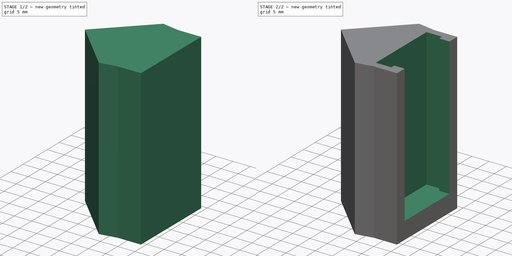
[diagram: build sequence overview — one tinted view per stage of 2, left to right]
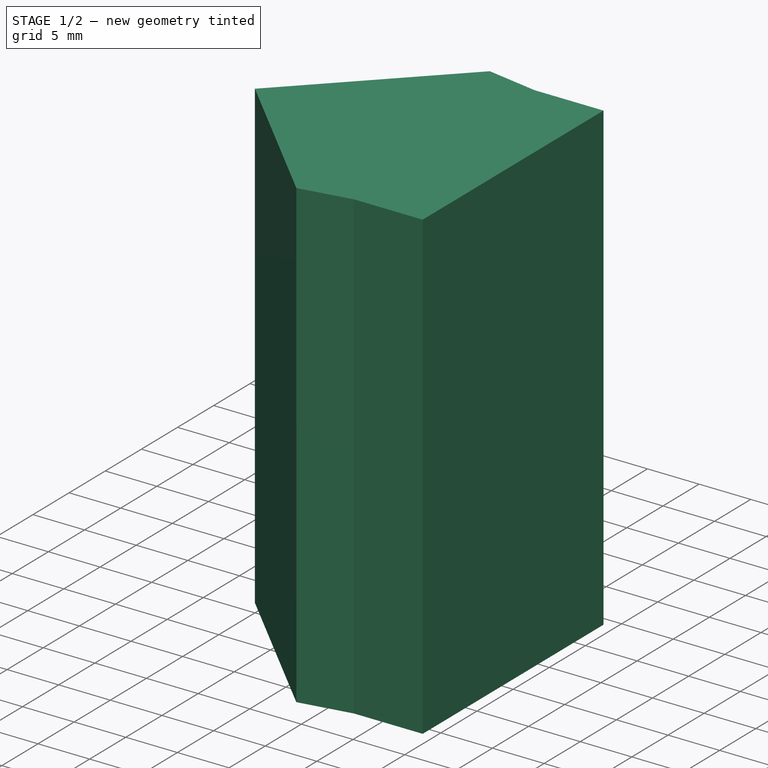
[diagram: stage 1 of 2 — iso view after this stage's code; geometry added in this stage tinted green]
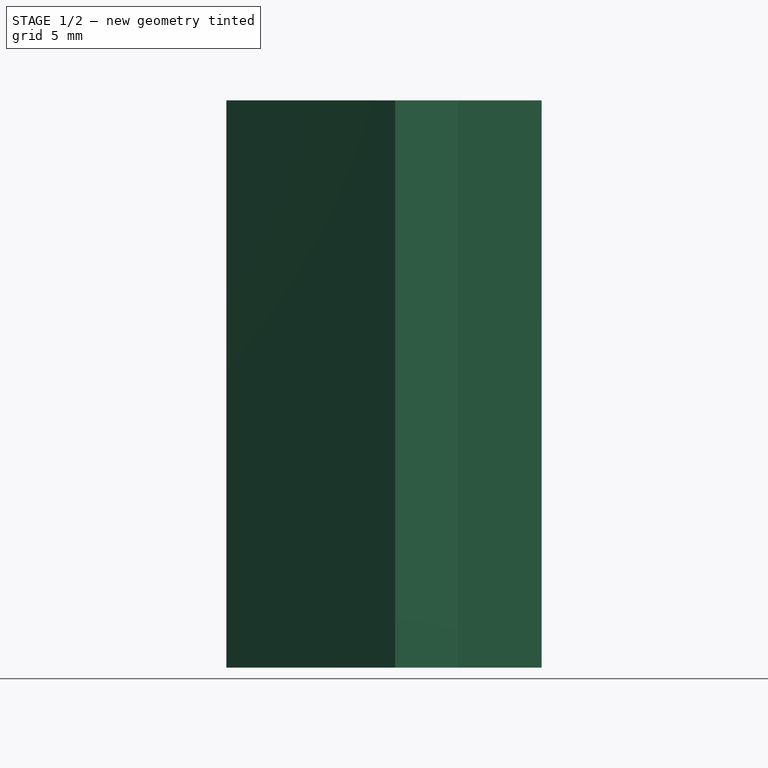
[diagram: stage 1 of 2 — front view after this stage's code; geometry added in this stage tinted green]
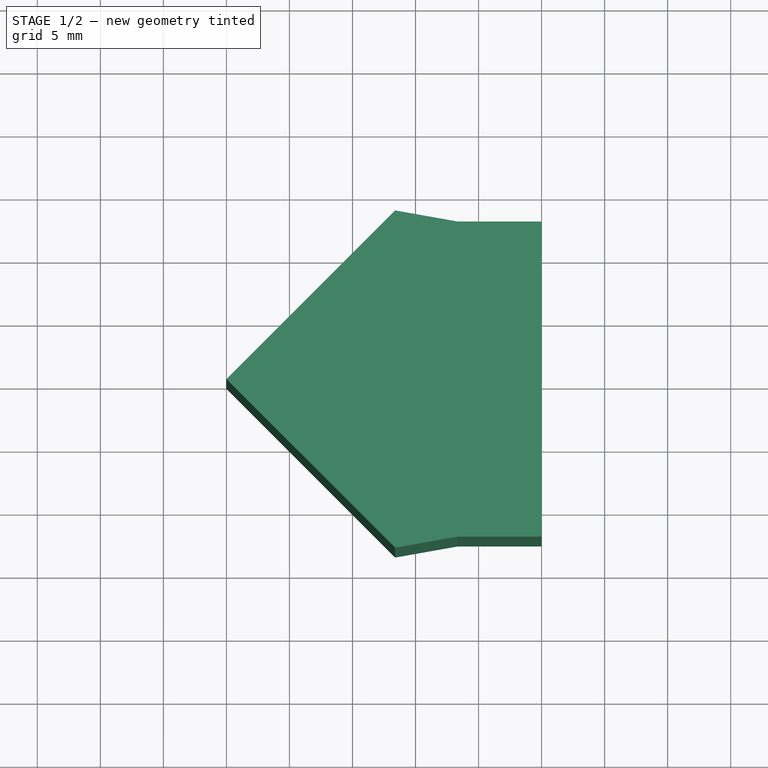
[diagram: stage 1 of 2 — top view after this stage's code; geometry added in this stage tinted green]
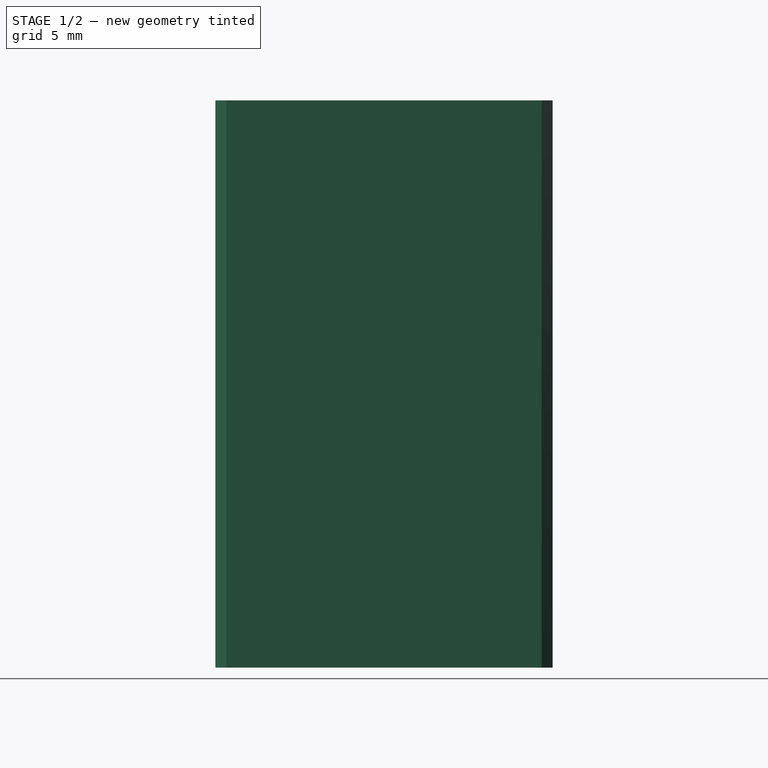
[diagram: stage 1 of 2 — right view after this stage's code; geometry added in this stage tinted green]
FCSTD DOCUMENT  (FreeCAD 0.20R27319 (Git))
Label: Corner Clamp 1
License: All rights reserved
LicenseURL: http://en.wikipedia.org/wiki/All_rights_reserved
objects: Sketcher::SketchObject×2, PartDesign::Pad×1, PartDesign::Pocket×1, PartDesign::Body×1
note: 7 computed .brp shape members not serialized (recipe doc carries the construction recipe); baked Part::Feature solids carry a one-line shape summary decoded from their .brp

FEATURE [Sketcher::SketchObject] Sketch
  FullyConstrained = false
  MapMode = 5
  Support = -> [XY_Plane]
  sketch-geometry (7):
    g0: LineSegment StartX=13.38 StartY=13.38 StartZ=0 EndX=0 EndY=0 EndZ=0
    g1: LineSegment StartX=0 StartY=0 StartZ=0 EndX=13.38 EndY=-13.38 EndZ=0
    g2: LineSegment StartX=13.38 StartY=-13.38 StartZ=0 EndX=18.3396 EndY=-12.5 EndZ=0
    g3: LineSegment StartX=18.3396 StartY=-12.5 StartZ=0 EndX=25 EndY=-12.5 EndZ=0
    g4: LineSegment StartX=25 StartY=-12.5 StartZ=0 EndX=25 EndY=12.5 EndZ=0
    g5: LineSegment StartX=25 StartY=12.5 StartZ=0 EndX=18.3396 EndY=12.5 EndZ=0
    g6: LineSegment StartX=18.3396 StartY=12.5 StartZ=0 EndX=13.38 EndY=13.38 EndZ=0
  constraints (15):
    c: Coincident(g0,g-1)
    c: Coincident(g0,g1)
    c: Coincident(g1,g2)
    c: Coincident(g2,g3)
    c: Coincident(g3,g4)
    c: Coincident(g4,g5)
    c: Coincident(g5,g6)
    c: Coincident(g6,g0)
    c: Symmetric(g0,g1,g-1)
    c: Symmetric(g4,g3,g-1)
    c: Distance(g4) = 25
    c: Symmetric(g5,g2,g-1)
    c: DistanceX(g0,g3) = 25
    c: Angle(g1,g0) = 1.5708
    c: Horizontal(g5)
FEATURE [PartDesign::Pad] Pad
  Direction = (0,0,1)
  Length = 45
  Length2 = 10
  Profile = -> Sketch
  ReferenceAxis = -> Sketch [N_Axis]
  Type = 0
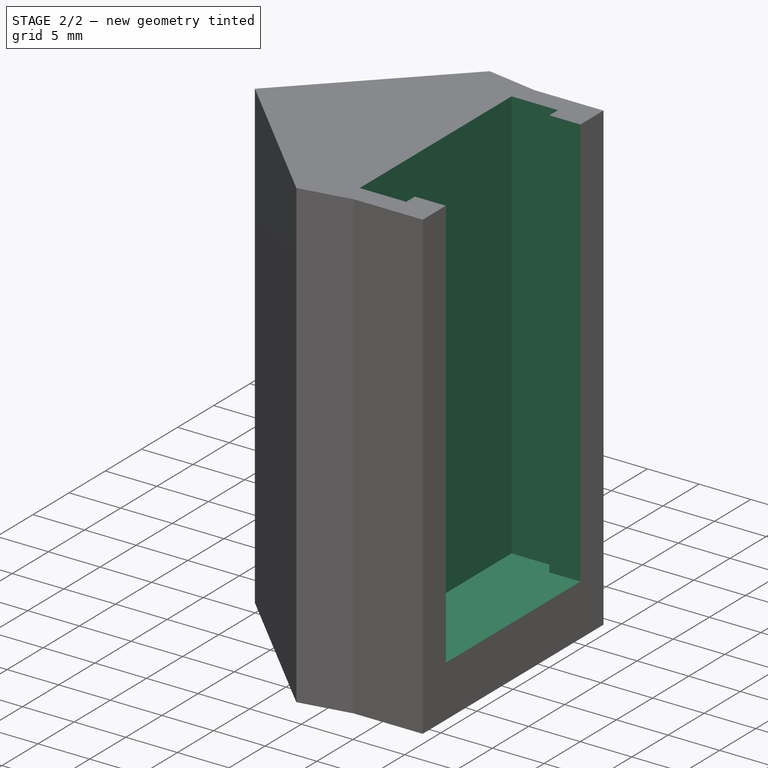
[diagram: stage 2 of 2 — iso view after this stage's code; geometry added in this stage tinted green]
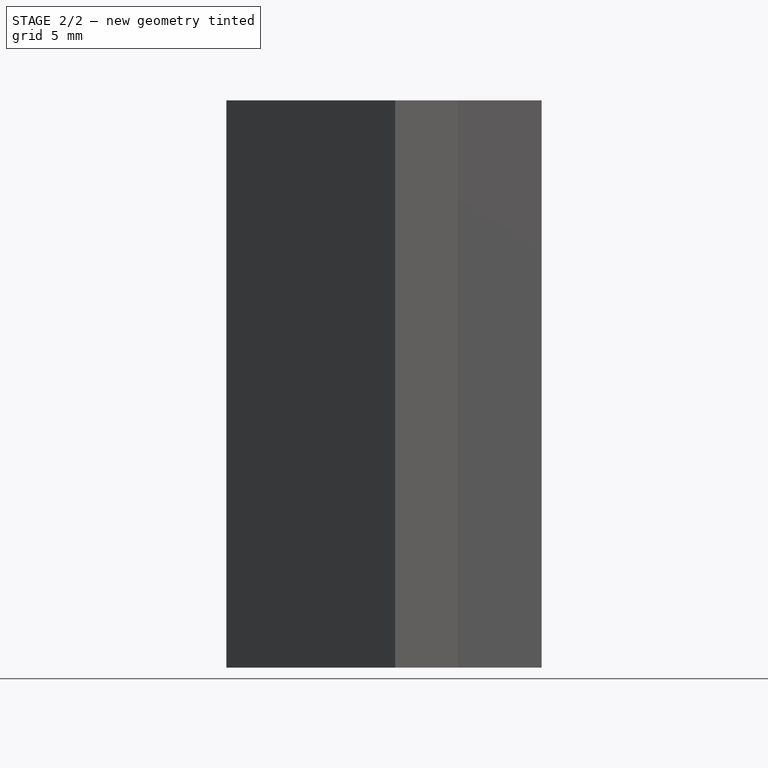
[diagram: stage 2 of 2 — front view after this stage's code; geometry added in this stage tinted green]
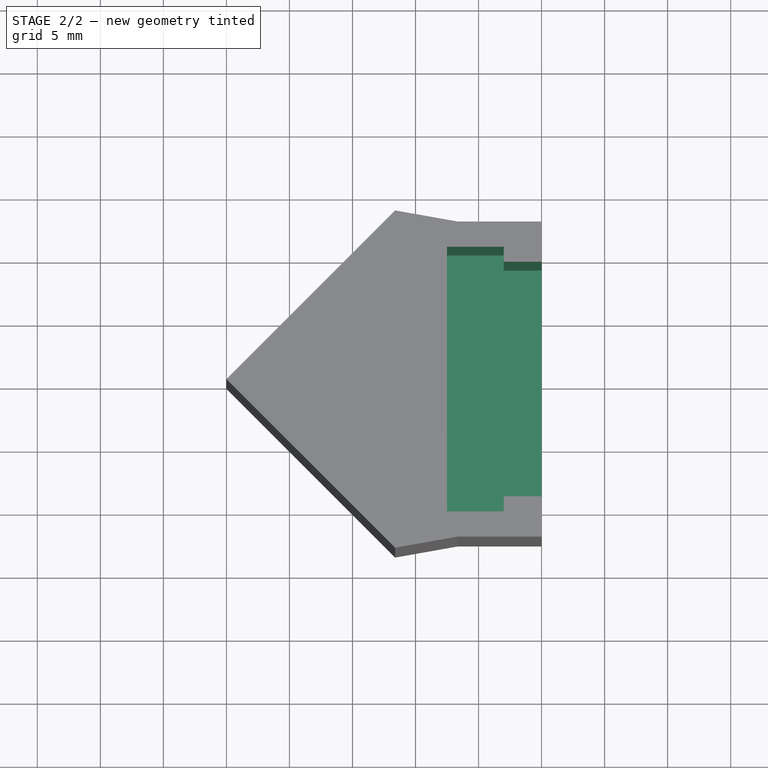
[diagram: stage 2 of 2 — top view after this stage's code; geometry added in this stage tinted green]
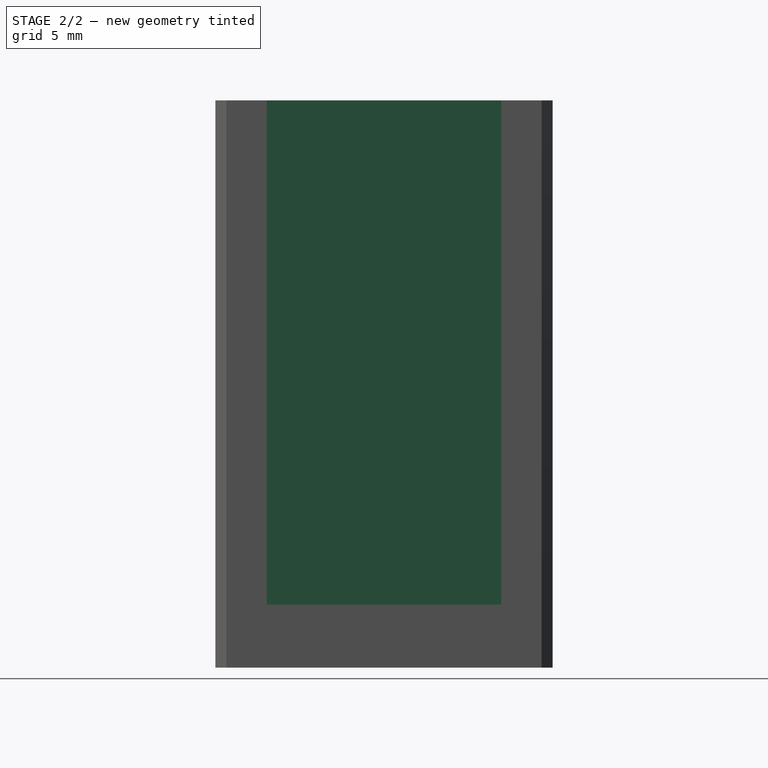
[diagram: stage 2 of 2 — right view after this stage's code; geometry added in this stage tinted green]
FEATURE [Sketcher::SketchObject] Sketch001
  ExternalGeometry = -> [Pad]
  FullyConstrained = false
  MapMode = 5
  Placement = pos=(0,0,45) rot=(0,0,1;0rad)
  Support = -> [Pad]
  sketch-geometry (8):
    g0: LineSegment StartX=25 StartY=9.3022 StartZ=0 EndX=22 EndY=9.3022 EndZ=0
    g1: LineSegment StartX=22 StartY=9.3022 StartZ=0 EndX=22 EndY=10.5 EndZ=0
    g2: LineSegment StartX=22 StartY=10.5 StartZ=0 EndX=17.5 EndY=10.5 EndZ=0
    g3: LineSegment StartX=17.5 StartY=10.5 StartZ=0 EndX=17.5 EndY=-10.5 EndZ=0
    g4: LineSegment StartX=17.5 StartY=-10.5 StartZ=0 EndX=22 EndY=-10.5 EndZ=0
    g5: LineSegment StartX=22 StartY=-10.5 StartZ=0 EndX=22 EndY=-9.3022 EndZ=0
    g6: LineSegment StartX=22 StartY=-9.3022 StartZ=0 EndX=25 EndY=-9.3022 EndZ=0
    g7: LineSegment StartX=25 StartY=9.3022 StartZ=0 EndX=25 EndY=-9.3022 EndZ=0
  constraints (19):
    c: PointOnObject(g0,g-3)
    c: Horizontal(g0)
    c: Coincident(g0,g1)
    c: Vertical(g1)
    c: Coincident(g1,g2)
    c: Coincident(g2,g3)
    c: Coincident(g3,g4)
    c: Coincident(g4,g5)
    c: Coincident(g5,g6)
    c: Symmetric(g0,g6,g-1)
    c: Symmetric(g0,g5,g-1)
    c: Horizontal(g2)
    c: Symmetric(g1,g4,g-1)
    c: Symmetric(g3,g2,g-1)
    c: Distance(g3) = 21
    c: Distance(g2) = 4.5
    c: Distance(g0) = 3
    c: Coincident(g7,g0)
    c: Coincident(g7,g6)
FEATURE [PartDesign::Pocket] Pocket
  BaseFeature = -> Pad
  Direction = (0,0,-1)
  Length = 40
  Length2 = 5
  Profile = -> Sketch001
  ReferenceAxis = -> Sketch001 [N_Axis]
  Type = 0
FEATURE [PartDesign::Body] Body
  Group = -> [Sketch,Pad,Sketch001,Pocket]
  Origin = -> Origin
  Tip = -> Pocket
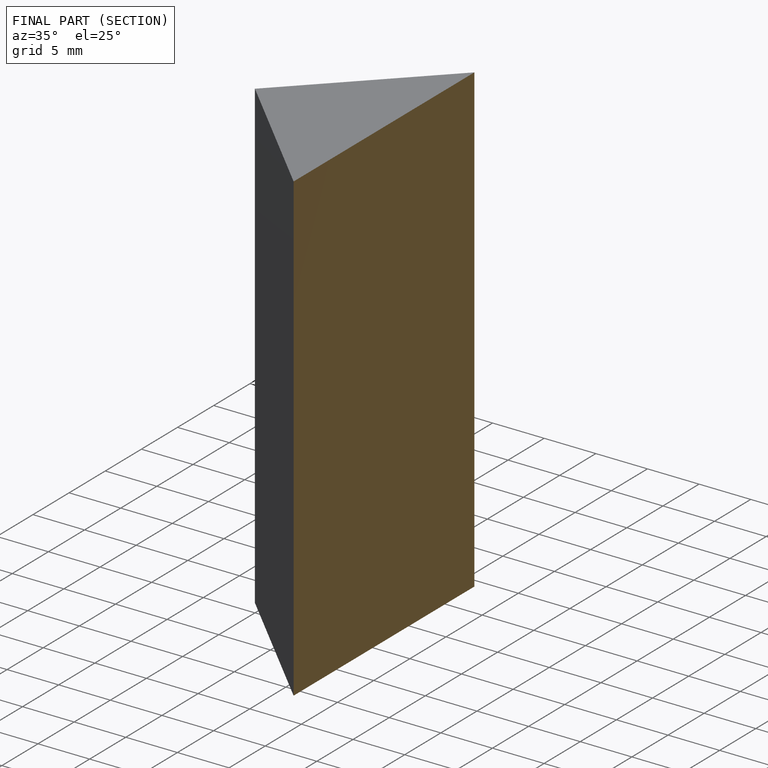
[diagram: finished part — half-section view (interior)]
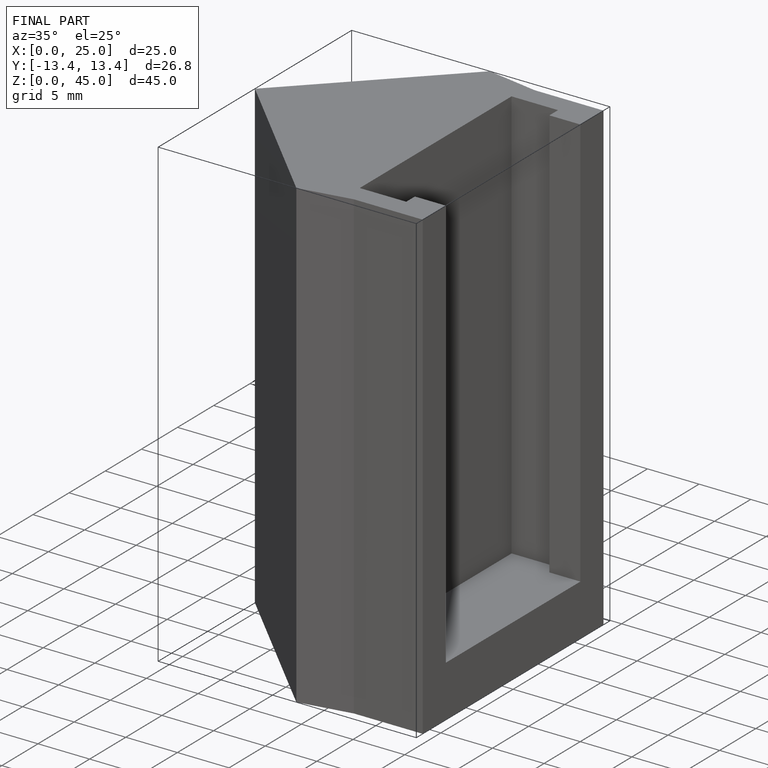
[diagram: finished part — iso view with bounding-box wireframe]
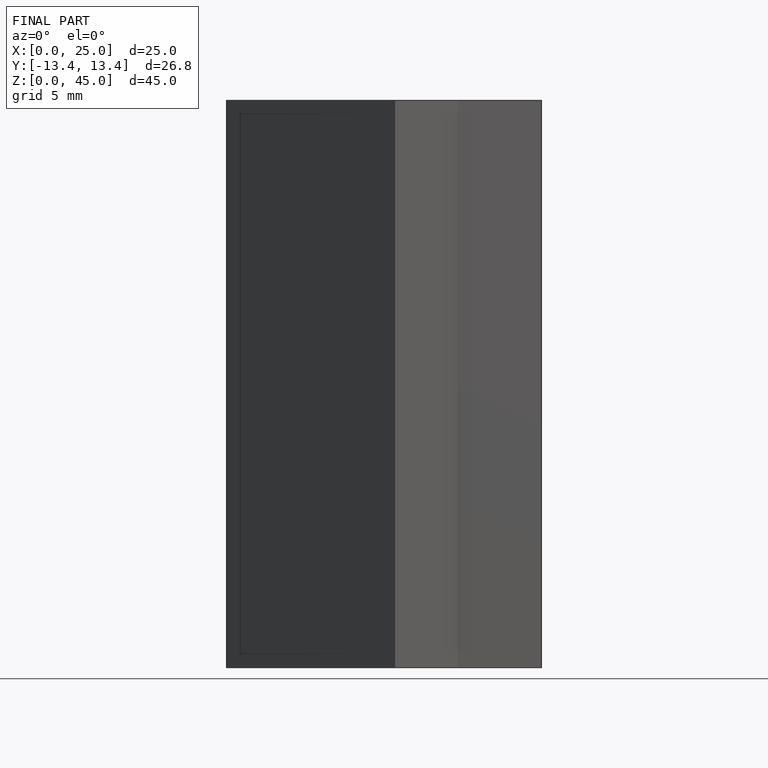
[diagram: finished part — front view with bounding-box wireframe]
